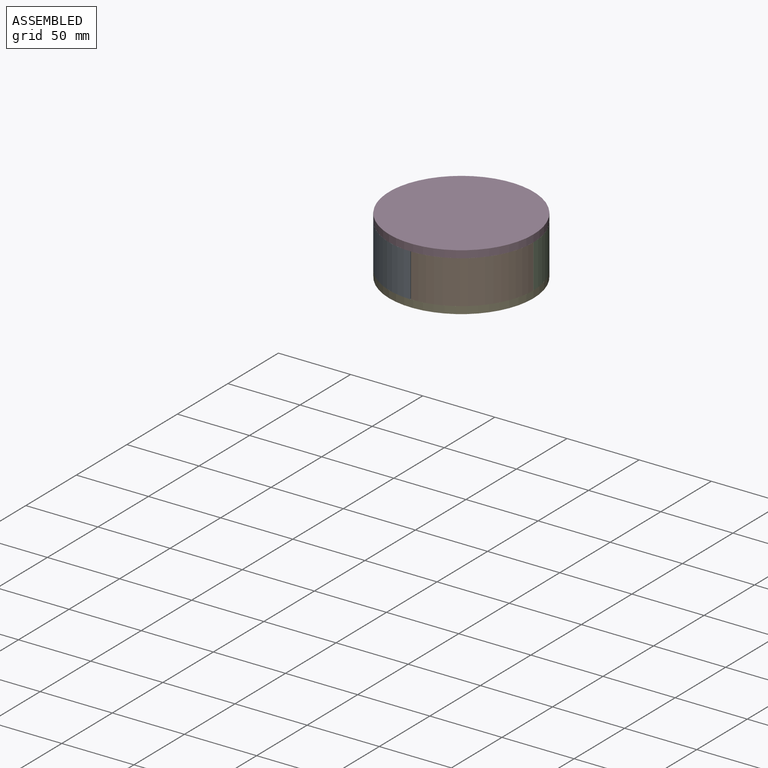
[diagram: assembled view]
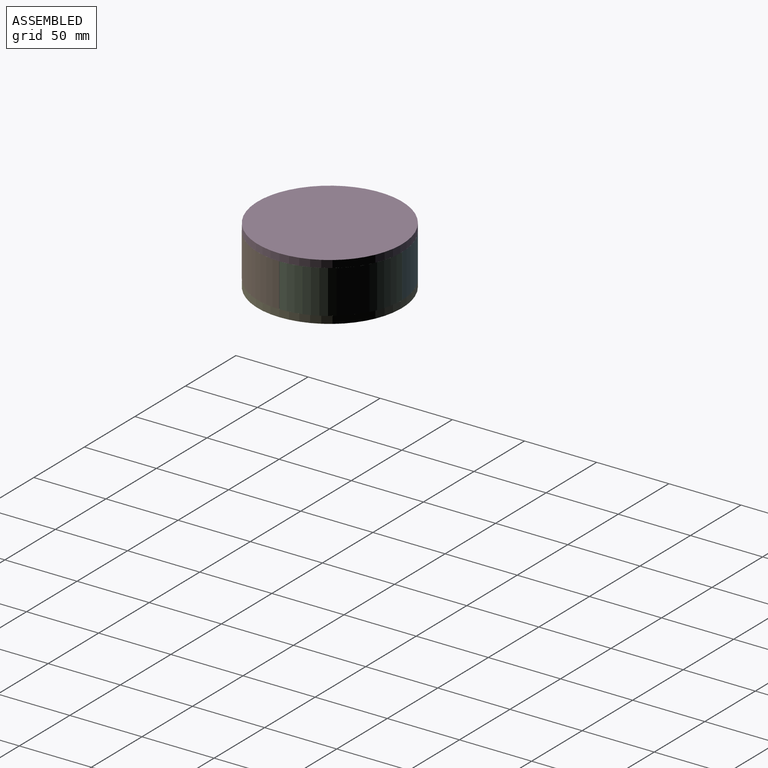
[diagram: assembled view, second angle]
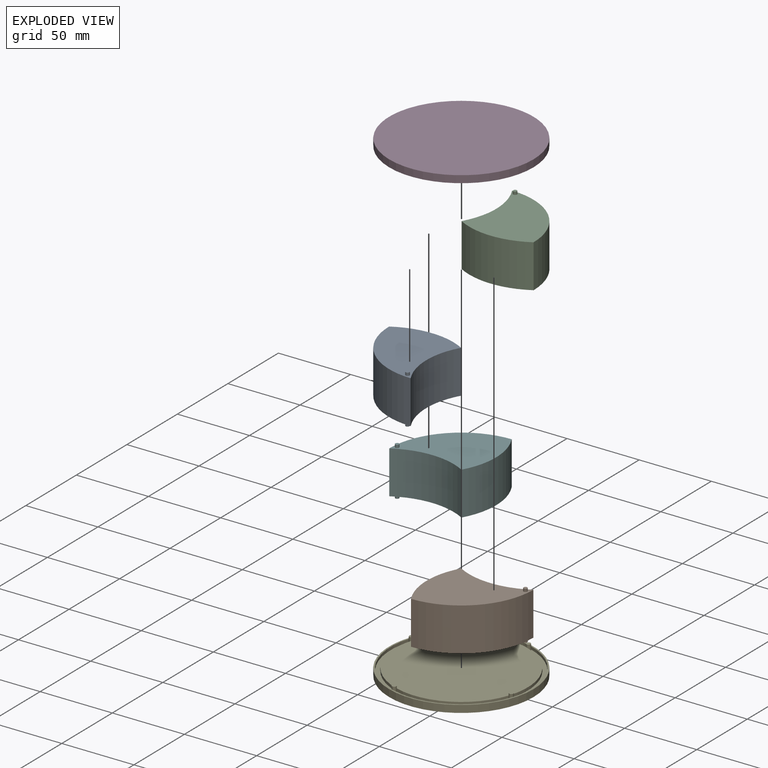
[diagram: exploded view]
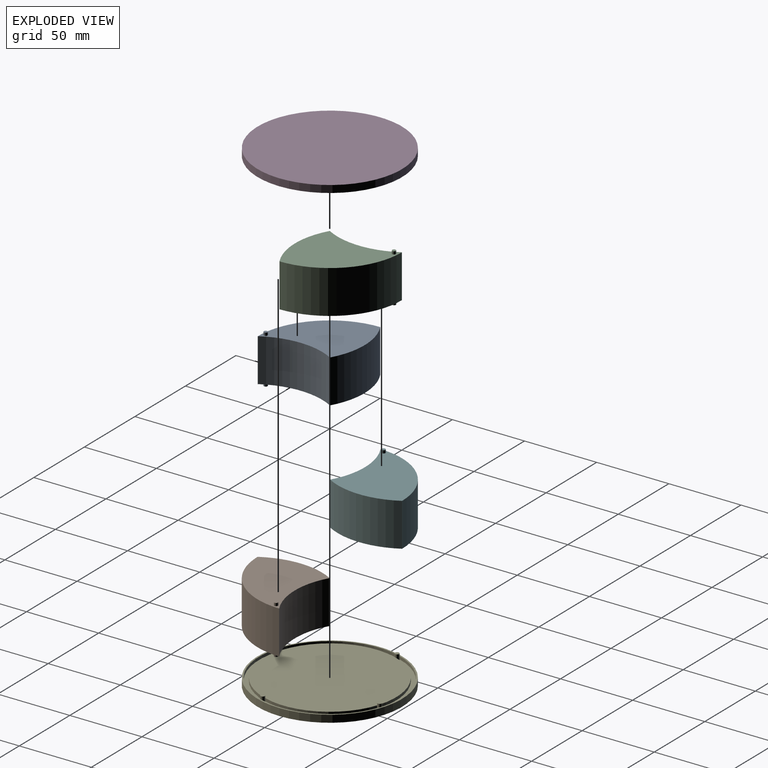
[diagram: exploded view, second angle]
ASSEMBLY  parts=6 mates=4
PART A: 15 faces, bbox 49.9x56.6x33.8 mm
  f0: plane 56.6x49.88mm, normal (0,0,1), area 1947.7mm2, adj f2,f3,f4,f5,f8
  f1: plane 56.6x49.88mm, normal (0,0,-1), area 1748.2mm2, adj f2,f3,f4,f5,f7,f10,f11,f12
  f2: cylinder r=50mm len=49.9mm, axis (0,0,-1), area 2349.7mm2, adj f0,f1,f4,f5
  f3: cylinder r=49.9mm len=49.81mm, axis (0,0,1), area 1564.7mm2, adj f0,f1,f4,f5
  f4: cylinder r=0.1mm len=30mm, axis (0,0,1), area 1.6mm2, adj f0,f1,f2,f3
  f5: cylinder r=50.1mm len=49.96mm, axis (0,0,1), area 1569.2mm2, adj f0,f1,f2,f3
  f6: plane 2.6x2.6mm, normal (0,0,-1), area 5.3mm2, adj f7
  f7: cylinder r=1.3mm len=2.6mm, axis (0,0,-1), area 14.7mm2, adj f1,f6
  f8: cylinder r=1.3mm len=2.6mm, axis (0,0,-1), area 16.3mm2, adj f0,f9
  f9: plane 2.6x2.6mm, normal (0,0,1), area 5.3mm2, adj f8
  f10: extruded ~42.37x22.63mm, area 133.4mm2, adj f1,f11,f13,f14
  f11: cylinder r=1.5mm len=2.96mm, axis (0,0,-1), area 10.4mm2, adj f1,f10,f12,f14
  f12: extruded ~47.82x24mm, area 148.9mm2, adj f1,f11,f13,f14
  f13: cylinder r=1.5mm len=2.76mm, axis (0,0,-1), area 10.4mm2, adj f1,f10,f12,f14
  f14: plane 48.1x26.34mm, normal (0,0,-1), area 199.5mm2, adj f10,f11,f12,f13
PART B: 15 faces, bbox 56.6x49.9x33.8 mm
  f0: plane 56.6x49.88mm, normal (0,0,1), area 1947.7mm2, adj f2,f3,f4,f5,f8
  f1: plane 56.6x49.88mm, normal (0,0,-1), area 1748.2mm2, adj f2,f3,f4,f5,f7,f10,f11,f12
  f2: cylinder r=50mm len=49.9mm, axis (0,0,-1), area 2349.7mm2, adj f0,f1,f4,f5
  f3: cylinder r=49.9mm len=49.81mm, axis (0,0,1), area 1564.7mm2, adj f0,f1,f4,f5
  f4: cylinder r=0.1mm len=30mm, axis (0,0,1), area 1.6mm2, adj f0,f1,f2,f3
  f5: cylinder r=50.1mm len=49.96mm, axis (0,0,1), area 1569.2mm2, adj f0,f1,f2,f3
  f6: plane 2.6x2.6mm, normal (0,0,-1), area 5.3mm2, adj f7
  f7: cylinder r=1.3mm len=2.6mm, axis (0,0,-1), area 14.7mm2, adj f1,f6
  f8: cylinder r=1.3mm len=2.6mm, axis (0,0,-1), area 16.3mm2, adj f0,f9
  f9: plane 2.6x2.6mm, normal (0,0,1), area 5.3mm2, adj f8
  f10: extruded ~42.37x22.63mm, area 133.4mm2, adj f1,f11,f13,f14
  f11: cylinder r=1.5mm len=2.96mm, axis (0,0,-1), area 10.4mm2, adj f1,f10,f12,f14
  f12: extruded ~47.82x24mm, area 148.9mm2, adj f1,f11,f13,f14
  f13: cylinder r=1.5mm len=2.76mm, axis (0,0,-1), area 10.4mm2, adj f1,f10,f12,f14
  f14: plane 48.1x26.34mm, normal (0,0,-1), area 199.5mm2, adj f10,f11,f12,f13
PART C: 15 faces, bbox 49.9x56.6x33.8 mm
  f0: plane 56.6x49.88mm, normal (0,0,1), area 1947.7mm2, adj f2,f3,f4,f5,f8
  f1: plane 56.6x49.88mm, normal (0,0,-1), area 1748.2mm2, adj f2,f3,f4,f5,f7,f10,f11,f12
  f2: cylinder r=50mm len=49.9mm, axis (0,0,-1), area 2349.7mm2, adj f0,f1,f4,f5
  f3: cylinder r=49.9mm len=49.81mm, axis (0,0,1), area 1564.7mm2, adj f0,f1,f4,f5
  f4: cylinder r=0.1mm len=30mm, axis (0,0,1), area 1.6mm2, adj f0,f1,f2,f3
  f5: cylinder r=50.1mm len=49.96mm, axis (0,0,1), area 1569.2mm2, adj f0,f1,f2,f3
  f6: plane 2.6x2.6mm, normal (0,0,-1), area 5.3mm2, adj f7
  f7: cylinder r=1.3mm len=2.6mm, axis (0,0,-1), area 14.7mm2, adj f1,f6
  f8: cylinder r=1.3mm len=2.6mm, axis (0,0,-1), area 16.3mm2, adj f0,f9
  f9: plane 2.6x2.6mm, normal (0,0,1), area 5.3mm2, adj f8
  f10: extruded ~42.37x22.63mm, area 133.4mm2, adj f1,f11,f13,f14
  f11: cylinder r=1.5mm len=2.96mm, axis (0,0,-1), area 10.4mm2, adj f1,f10,f12,f14
  f12: extruded ~47.82x24mm, area 148.9mm2, adj f1,f11,f13,f14
  f13: cylinder r=1.5mm len=2.76mm, axis (0,0,-1), area 10.4mm2, adj f1,f10,f12,f14
  f14: plane 48.1x26.34mm, normal (0,0,-1), area 199.5mm2, adj f10,f11,f12,f13
PART D: 11 faces, bbox 100x100x5 mm
  f0: cylinder r=50mm len=100mm, axis (0,0,-1), area 1570.8mm2, adj f1,f2
  f1: plane 100x100mm, normal (0,0,1), area 7854mm2, adj f0
  f2: plane 100x100mm, normal (0,0,-1), area 7817.7mm2, adj f0,f3,f5,f7,f9
  f3: cylinder r=1.7mm len=3.4mm, axis (0,0,1), area 23.5mm2, adj f2,f4
  f4: plane 3.4x3.4mm, normal (0,0,-1), area 9.1mm2, adj f3
  f5: cylinder r=1.7mm len=3.4mm, axis (0,0,1), area 23.5mm2, adj f2,f6
  f6: plane 3.4x3.4mm, normal (0,0,-1), area 9.1mm2, adj f5
  f7: cylinder r=1.7mm len=3.4mm, axis (0,0,1), area 23.5mm2, adj f2,f8
  f8: plane 3.4x3.4mm, normal (0,0,-1), area 9.1mm2, adj f7
  f9: cylinder r=1.7mm len=3.4mm, axis (0,0,1), area 23.5mm2, adj f2,f10
  f10: plane 3.4x3.4mm, normal (0,0,-1), area 9.1mm2, adj f9
PART E: 36 faces, bbox 100x100x7 mm
  f0: plane 100x100mm, normal (0,0,1), area 311mm2, adj f2,f5,f10,f15,f20,f24,f28,f31
  f1: plane 92x92mm, normal (0,0,1), area 6647.6mm2, adj f7,f12,f17,f22,f25,f27,f30,f34
  f2: cylinder r=50mm len=100mm, axis (0,0,-1), area 1570.8mm2, adj f0,f3
  f3: plane 100x100mm, normal (0,0,-1), area 7854mm2, adj f2
  f4: cylinder r=1.5mm len=4mm, axis (0,0,1), area 18.5mm2, adj f5,f7,f8,f27,f28,f29
  f5: cylinder r=49mm len=61.92mm, axis (0,0,1), area 153.8mm2, adj f0,f4,f6,f8
  f6: cylinder r=1.5mm len=4mm, axis (0,0,1), area 18.5mm2, adj f5,f7,f8,f30,f31,f32
  f7: cylinder r=46mm len=58.12mm, axis (0,0,1), area 144.4mm2, adj f1,f4,f6,f8
  f8: plane 61.92x34.44mm, normal (0,0,1), area 216.8mm2, adj f4,f5,f6,f7
  f9: cylinder r=1.5mm len=4mm, axis (0,0,1), area 18.5mm2, adj f10,f12,f13,f24,f25,f26
  f10: cylinder r=49mm len=61.92mm, axis (0,0,1), area 153.8mm2, adj f0,f9,f11,f13
  f11: cylinder r=1.5mm len=4mm, axis (0,0,1), area 18.5mm2, adj f10,f12,f13,f27,f28,f29
  f12: cylinder r=46mm len=58.12mm, axis (0,0,1), area 144.4mm2, adj f1,f9,f11,f13
  f13: plane 61.92x34.44mm, normal (0,0,1), area 216.8mm2, adj f9,f10,f11,f12
  f14: cylinder r=1.5mm len=4mm, axis (0,0,1), area 18.5mm2, adj f15,f17,f18,f30,f31,f32
  f15: cylinder r=49mm len=61.92mm, axis (0,0,1), area 153.8mm2, adj f0,f14,f16,f18
  f16: cylinder r=1.5mm len=4mm, axis (0,0,1), area 18.5mm2, adj f15,f17,f18,f33,f34,f35
  f17: cylinder r=46mm len=58.12mm, axis (0,0,1), area 144.4mm2, adj f1,f14,f16,f18
  f18: plane 61.92x34.44mm, normal (0,0,1), area 216.8mm2, adj f14,f15,f16,f17
  f19: cylinder r=1.5mm len=4mm, axis (0,0,1), area 18.5mm2, adj f20,f22,f23,f33,f34,f35
  f20: cylinder r=49mm len=61.92mm, axis (0,0,1), area 153.8mm2, adj f0,f19,f21,f23
  f21: cylinder r=1.5mm len=4mm, axis (0,0,1), area 18.5mm2, adj f20,f22,f23,f24,f25,f26
  f22: cylinder r=46mm len=58.12mm, axis (0,0,1), area 144.4mm2, adj f1,f19,f21,f23
  f23: plane 61.92x34.44mm, normal (0,0,1), area 216.8mm2, adj f19,f20,f21,f22
  f24: cylinder r=49mm len=2mm, axis (0,0,-1), area 0.2mm2, adj f0,f9,f21,f26
  f25: cylinder r=46mm len=2mm, axis (0,0,-1), area 0.2mm2, adj f1,f9,f21,f26
  f26: plane 3x3mm, normal (0,0,1), area 7.1mm2, adj f9,f21,f24,f25
  f27: cylinder r=46mm len=2mm, axis (0,0,-1), area 0.2mm2, adj f1,f4,f11,f29
  f28: cylinder r=49mm len=2mm, axis (0,0,-1), area 0.2mm2, adj f0,f4,f11,f29
  f29: plane 3x3mm, normal (0,0,1), area 7.1mm2, adj f4,f11,f27,f28
  f30: cylinder r=46mm len=2mm, axis (0,0,-1), area 0.2mm2, adj f1,f6,f14,f32
  f31: cylinder r=49mm len=2mm, axis (0,0,-1), area 0.2mm2, adj f0,f6,f14,f32
  f32: plane 3x3mm, normal (0,0,1), area 7.1mm2, adj f6,f14,f30,f31
  f33: cylinder r=49mm len=2mm, axis (0,0,-1), area 0.2mm2, adj f0,f16,f19,f35
  f34: cylinder r=46mm len=2mm, axis (0,0,-1), area 0.2mm2, adj f1,f16,f19,f35
  f35: plane 3x3mm, normal (0,0,1), area 7.1mm2, adj f16,f19,f33,f34
PART F: 15 faces, bbox 56.6x49.9x33.8 mm
  f0: plane 56.6x49.88mm, normal (0,0,1), area 1947.7mm2, adj f1,f3,f4,f5,f8
  f1: cylinder r=50mm len=49.9mm, axis (0,0,-1), area 2349.7mm2, adj f0,f2,f4,f5
  f2: plane 56.6x49.88mm, normal (0,0,-1), area 1748.2mm2, adj f1,f3,f4,f5,f7,f10,f11,f12
  f3: cylinder r=49.9mm len=49.81mm, axis (0,0,1), area 1564.7mm2, adj f0,f2,f4,f5
  f4: cylinder r=50.1mm len=49.96mm, axis (0,0,1), area 1569.2mm2, adj f0,f1,f2,f3
  f5: cylinder r=0.1mm len=30mm, axis (0,0,1), area 1.6mm2, adj f0,f1,f2,f3
  f6: plane 2.6x2.6mm, normal (0,0,-1), area 5.3mm2, adj f7
  f7: cylinder r=1.3mm len=2.6mm, axis (0,0,-1), area 14.7mm2, adj f2,f6
  f8: cylinder r=1.3mm len=2.6mm, axis (0,0,-1), area 16.3mm2, adj f0,f9
  f9: plane 2.6x2.6mm, normal (0,0,1), area 5.3mm2, adj f8
  f10: extruded ~42.37x22.63mm, area 133.4mm2, adj f2,f11,f13,f14
  f11: cylinder r=1.5mm len=2.96mm, axis (0,0,-1), area 10.4mm2, adj f2,f10,f12,f14
  f12: extruded ~47.82x24mm, area 148.9mm2, adj f2,f11,f13,f14
  f13: cylinder r=1.5mm len=2.76mm, axis (0,0,-1), area 10.4mm2, adj f2,f10,f12,f14
  f14: plane 48.1x26.34mm, normal (0,0,-1), area 199.5mm2, adj f10,f11,f12,f13
PLACE A t=(-63.62,50.68,-4.51)mm
PLACE B t=(-63.62,50.68,-4.51)mm
PLACE C t=(-63.62,50.68,-4.51)mm
PLACE D t=(-63.62,50.68,-4.51)mm
PLACE E t=(-63.62,50.68,-4.51)mm
PLACE F t=(-63.62,50.68,-4.51)mm
MATE revolute D.f5 <-> B.f7  axis (0,0,-1) through (-16.3,46.58,32.69)mm
MATE revolute D.f9 <-> F.f7  axis (0,0,-1) through (-110.94,54.79,32.69)mm
MATE revolute D.f3 <-> A.f7  axis (0,0,-1) through (-67.73,3.36,32.69)mm
MATE revolute D.f7 <-> C.f7  axis (0,0,-1) through (-59.51,98.01,32.69)mm
